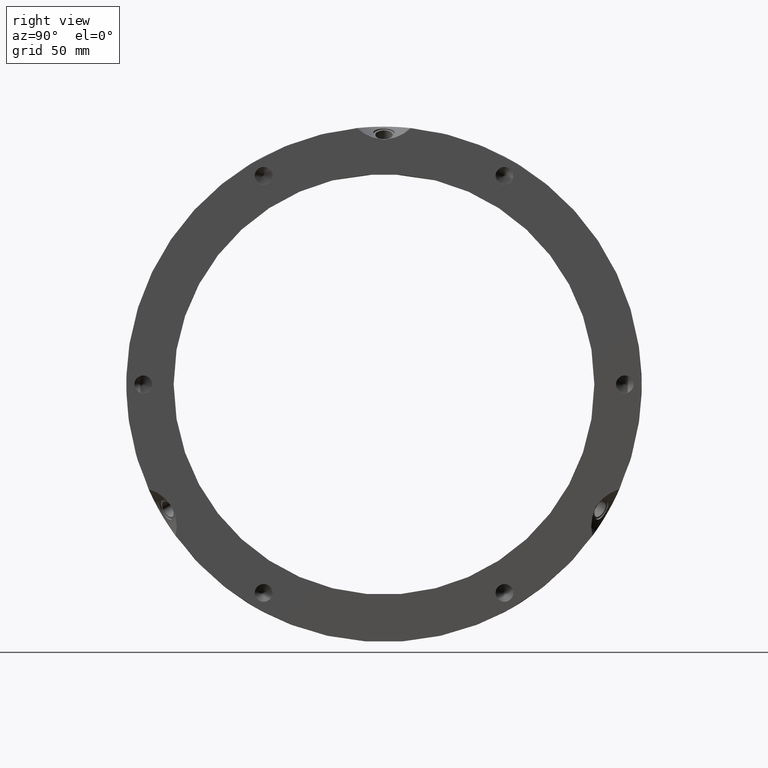
[diagram: clean part render]
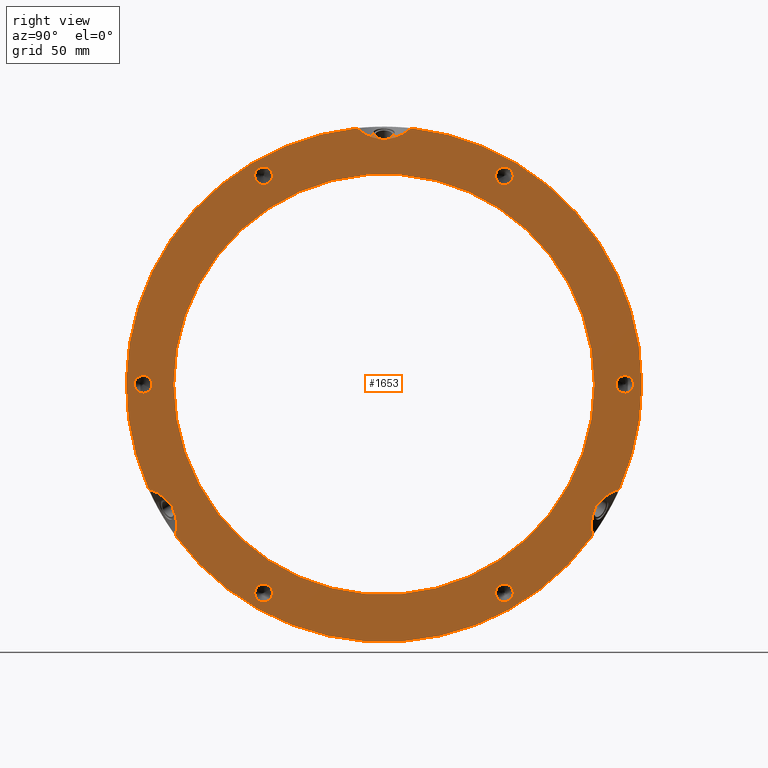
[diagram: same view with one face highlighted and labeled with its STEP entity id]
A machine part, right view. The second image highlights one B-rep face of the part: STEP entity #1653.
In plain terms, the highlighted planar face has unit normal (1, 0, 0).
Its self-contained STEP definition (entity closure, byte-faithful):
#132=CARTESIAN_POINT('',(31.999999999999975,53.61269330410542,97.059908733318252));
#133=VERTEX_POINT('',#132);
#134=CARTESIAN_POINT('',(31.999999999999975,57.25000000000005,99.159908733318218));
#135=DIRECTION('',(-1.0,0.0,0.0));
#136=DIRECTION('',(0.0,-0.866025403784439,-0.499999999999999));
#137=AXIS2_PLACEMENT_3D('',#134,#135,#136);
#138=CIRCLE('',#137,4.2);
#139=EDGE_CURVE('',#133,#133,#138,.T.);
#286=CARTESIAN_POINT('',(31.999999999999975,110.86269330410538,2.1));
#287=VERTEX_POINT('',#286);
#288=CARTESIAN_POINT('',(31.999999999999975,114.50000000000003,0.0));
#289=DIRECTION('',(-1.0,0.0,0.0));
#290=DIRECTION('',(0.0,-0.866025403784438,0.5));
#291=AXIS2_PLACEMENT_3D('',#288,#289,#290);
#292=CIRCLE('',#291,4.200000000000001);
#293=EDGE_CURVE('',#287,#287,#292,.T.);
#440=CARTESIAN_POINT('',(31.999999999999975,57.25000000000005,-94.95990873331823));
#441=VERTEX_POINT('',#440);
#442=CARTESIAN_POINT('',(31.999999999999975,57.25000000000005,-99.159908733318233));
#443=DIRECTION('',(-1.0,0.0,0.0));
#444=DIRECTION('',(0.0,0.0,1.0));
#445=AXIS2_PLACEMENT_3D('',#442,#443,#444);
#446=CIRCLE('',#445,4.200000000000001);
#447=EDGE_CURVE('',#441,#441,#446,.T.);
#594=CARTESIAN_POINT('',(31.999999999999975,-53.612693304105335,-97.059908733318267));
#595=VERTEX_POINT('',#594);
#596=CARTESIAN_POINT('',(31.999999999999975,-57.249999999999986,-99.159908733318247));
#597=DIRECTION('',(-1.0,0.0,0.0));
#598=DIRECTION('',(0.0,0.866025403784439,0.5));
#599=AXIS2_PLACEMENT_3D('',#596,#597,#598);
#600=CIRCLE('',#599,4.199999999999999);
#601=EDGE_CURVE('',#595,#595,#600,.T.);
#748=CARTESIAN_POINT('',(31.999999999999975,-110.86269330410538,-2.100000000000044));
#749=VERTEX_POINT('',#748);
#750=CARTESIAN_POINT('',(31.999999999999975,-114.50000000000003,-4.440892E-014));
#751=DIRECTION('',(-1.0,0.0,0.0));
#752=DIRECTION('',(0.0,0.866025403784439,-0.5));
#753=AXIS2_PLACEMENT_3D('',#750,#751,#752);
#754=CIRCLE('',#753,4.2);
#755=EDGE_CURVE('',#749,#749,#754,.T.);
#902=CARTESIAN_POINT('',(31.999999999999975,-57.250000000000057,94.959908733318215));
#903=VERTEX_POINT('',#902);
#904=CARTESIAN_POINT('',(31.999999999999975,-57.250000000000057,99.159908733318218));
#905=DIRECTION('',(-1.0,0.0,0.0));
#906=DIRECTION('',(0.0,0.0,-1.0));
#907=AXIS2_PLACEMENT_3D('',#904,#905,#906);
#908=CIRCLE('',#907,4.2);
#909=EDGE_CURVE('',#903,#903,#908,.T.);
#997=CARTESIAN_POINT('',(31.999999999980972,101.54865190468115,-57.200979373605492));
#998=VERTEX_POINT('',#997);
#999=CARTESIAN_POINT('',(31.999999999999972,111.89980988498361,-49.846590131166693));
#1000=VERTEX_POINT('',#999);
#1001=CARTESIAN_POINT('',(31.999999999999975,120.8919595408871,-69.797005383792595));
#1002=DIRECTION('',(-1.0,0.0,0.0));
#1003=DIRECTION('',(0.0,-0.866025403784438,0.5));
#1004=AXIS2_PLACEMENT_3D('',#1001,#1002,#1003);
#1005=ELLIPSE('',#1004,23.094010767585029,19.999999999999996);
#1006=EDGE_CURVE('',#998,#1000,#1005,.T.);
#1008=CARTESIAN_POINT('',(31.999999999980972,100.31182721123255,-59.343222582714262));
#1009=VERTEX_POINT('',#1008);
#1048=CARTESIAN_POINT('',(31.999999999999975,99.118318288112803,-71.984782973461577));
#1049=VERTEX_POINT('',#1048);
#1050=CARTESIAN_POINT('',(31.999999999999975,120.8919595408871,-69.797005383792595));
#1051=DIRECTION('',(-1.0,0.0,0.0));
#1052=DIRECTION('',(0.0,-0.866025403784438,0.5));
#1053=AXIS2_PLACEMENT_3D('',#1050,#1051,#1052);
#1054=ELLIPSE('',#1053,23.094010767585029,19.999999999999996);
#1055=EDGE_CURVE('',#1049,#1009,#1054,.T.);
#1144=CARTESIAN_POINT('',(31.999999999999975,109.49999999999987,-63.219854476264018));
#1145=DIRECTION('',(-1.0,0.0,0.0));
#1146=DIRECTION('',(0.0,-0.866025403784438,0.5));
#1147=AXIS2_PLACEMENT_3D('',#1144,#1145,#1146);
#1148=ELLIPSE('',#1147,10.200000000000065,5.10000000000004);
#1149=EDGE_CURVE('',#1009,#998,#1148,.T.);
#1183=CARTESIAN_POINT('',(31.999999999980972,-100.31182721123258,-59.343222582714183));
#1184=VERTEX_POINT('',#1183);
#1185=CARTESIAN_POINT('',(31.999999999999979,-99.11831828811286,-71.98478297346152));
#1186=VERTEX_POINT('',#1185);
#1187=CARTESIAN_POINT('',(31.999999999999975,-120.89195954088714,-69.797005383792495));
#1188=DIRECTION('',(-1.0,0.0,0.0));
#1189=DIRECTION('',(0.0,0.866025403784439,0.5));
#1190=AXIS2_PLACEMENT_3D('',#1187,#1188,#1189);
#1191=ELLIPSE('',#1190,23.094010767585026,19.999999999999996);
#1192=EDGE_CURVE('',#1184,#1186,#1191,.T.);
#1194=CARTESIAN_POINT('',(31.999999999980972,-101.54865190468118,-57.200979373605392));
#1195=VERTEX_POINT('',#1194);
#1234=CARTESIAN_POINT('',(31.999999999999972,-111.89980988498364,-49.846590131166622));
#1235=VERTEX_POINT('',#1234);
#1236=CARTESIAN_POINT('',(31.999999999999975,-120.89195954088714,-69.797005383792495));
#1237=DIRECTION('',(-1.0,0.0,0.0));
#1238=DIRECTION('',(0.0,0.866025403784439,0.5));
#1239=AXIS2_PLACEMENT_3D('',#1236,#1237,#1238);
#1240=ELLIPSE('',#1239,23.094010767585026,19.999999999999996);
#1241=EDGE_CURVE('',#1235,#1195,#1240,.T.);
#1330=CARTESIAN_POINT('',(31.999999999999975,-109.4999999999999,-63.219854476263926));
#1331=DIRECTION('',(-1.0,0.0,0.0));
#1332=DIRECTION('',(0.0,0.866025403784439,0.5));
#1333=AXIS2_PLACEMENT_3D('',#1330,#1331,#1332);
#1334=ELLIPSE('',#1333,10.200000000000063,5.100000000000039);
#1335=EDGE_CURVE('',#1195,#1184,#1334,.T.);
#1405=CARTESIAN_POINT('',(31.999999999999975,0.0,0.0));
#1406=DIRECTION('',(1.0,0.0,0.0));
#1407=DIRECTION('',(0.0,1.0,0.0));
#1408=AXIS2_PLACEMENT_3D('',#1405,#1406,#1407);
#1409=CIRCLE('',#1408,122.5);
#1410=EDGE_CURVE('',#1186,#1049,#1409,.T.);
#1413=CARTESIAN_POINT('',(31.999999999999975,-12.781491596870836,121.83137310462818));
#1414=VERTEX_POINT('',#1413);
#1415=CARTESIAN_POINT('',(31.999999999999975,0.0,0.0));
#1416=DIRECTION('',(1.0,0.0,0.0));
#1417=DIRECTION('',(0.0,1.0,0.0));
#1418=AXIS2_PLACEMENT_3D('',#1415,#1416,#1417);
#1419=CIRCLE('',#1418,122.5);
#1420=EDGE_CURVE('',#1414,#1235,#1419,.T.);
#1422=CARTESIAN_POINT('',(31.999999999999975,12.781491596870836,121.83137310462818));
#1423=VERTEX_POINT('',#1422);
#1445=CARTESIAN_POINT('',(31.999999999999975,0.0,0.0));
#1446=DIRECTION('',(1.0,0.0,0.0));
#1447=DIRECTION('',(0.0,1.0,0.0));
#1448=AXIS2_PLACEMENT_3D('',#1445,#1446,#1447);
#1449=CIRCLE('',#1448,122.5);
#1450=EDGE_CURVE('',#1000,#1423,#1449,.T.);
#1518=CARTESIAN_POINT('',(31.999999999999979,-1.236824693243798,116.54420195628303));
#1519=VERTEX_POINT('',#1518);
#1520=CARTESIAN_POINT('',(31.999999999999979,1.236824693243798,116.54420195628303));
#1521=VERTEX_POINT('',#1520);
#1560=CARTESIAN_POINT('',(31.999999999999975,0.0,126.43970895252789));
#1561=DIRECTION('',(-1.0,0.0,0.0));
#1562=DIRECTION('',(0.0,0.0,-1.0));
#1563=AXIS2_PLACEMENT_3D('',#1560,#1561,#1562);
#1564=ELLIPSE('',#1563,10.200000000000065,5.10000000000004);
#1565=EDGE_CURVE('',#1521,#1519,#1564,.T.);
#1593=CARTESIAN_POINT('',(31.999999999999975,111.25,0.0));
#1594=DIRECTION('',(1.0,0.0,0.0));
#1595=DIRECTION('',(0.0,0.0,-1.0));
#1596=AXIS2_PLACEMENT_3D('',#1593,#1594,#1595);
#1597=PLANE('',#1596);
#1598=ORIENTED_EDGE('',*,*,#1006,.T.);
#1599=ORIENTED_EDGE('',*,*,#1450,.T.);
#1600=CARTESIAN_POINT('',(31.999999999999975,0.0,139.59401076758505));
#1601=DIRECTION('',(-1.0,0.0,0.0));
#1602=DIRECTION('',(0.0,0.0,-1.0));
#1603=AXIS2_PLACEMENT_3D('',#1600,#1601,#1602);
#1604=ELLIPSE('',#1603,23.094010767585029,19.999999999999996);
#1605=EDGE_CURVE('',#1423,#1521,#1604,.T.);
#1606=ORIENTED_EDGE('',*,*,#1605,.T.);
#1607=ORIENTED_EDGE('',*,*,#1565,.T.);
#1608=CARTESIAN_POINT('',(31.999999999999975,0.0,139.59401076758505));
#1609=DIRECTION('',(-1.0,0.0,0.0));
#1610=DIRECTION('',(0.0,0.0,-1.0));
#1611=AXIS2_PLACEMENT_3D('',#1608,#1609,#1610);
#1612=ELLIPSE('',#1611,23.094010767585029,19.999999999999996);
#1613=EDGE_CURVE('',#1519,#1414,#1612,.T.);
#1614=ORIENTED_EDGE('',*,*,#1613,.T.);
#1615=ORIENTED_EDGE('',*,*,#1420,.T.);
#1616=ORIENTED_EDGE('',*,*,#1241,.T.);
#1617=ORIENTED_EDGE('',*,*,#1335,.T.);
#1618=ORIENTED_EDGE('',*,*,#1192,.T.);
#1619=ORIENTED_EDGE('',*,*,#1410,.T.);
#1620=ORIENTED_EDGE('',*,*,#1055,.T.);
#1621=ORIENTED_EDGE('',*,*,#1149,.T.);
#1622=EDGE_LOOP('',(#1598,#1599,#1606,#1607,#1614,#1615,#1616,#1617,#1618,#1619,#1620,#1621));
#1623=FACE_OUTER_BOUND('',#1622,.T.);
#1624=ORIENTED_EDGE('',*,*,#139,.T.);
#1625=EDGE_LOOP('',(#1624));
#1626=FACE_BOUND('',#1625,.T.);
#1627=ORIENTED_EDGE('',*,*,#293,.T.);
#1628=EDGE_LOOP('',(#1627));
#1629=FACE_BOUND('',#1628,.T.);
#1630=ORIENTED_EDGE('',*,*,#447,.T.);
#1631=EDGE_LOOP('',(#1630));
#1632=FACE_BOUND('',#1631,.T.);
#1633=ORIENTED_EDGE('',*,*,#601,.T.);
#1634=EDGE_LOOP('',(#1633));
#1635=FACE_BOUND('',#1634,.T.);
#1636=ORIENTED_EDGE('',*,*,#755,.T.);
#1637=EDGE_LOOP('',(#1636));
#1638=FACE_BOUND('',#1637,.T.);
#1639=ORIENTED_EDGE('',*,*,#909,.T.);
#1640=EDGE_LOOP('',(#1639));
#1641=FACE_BOUND('',#1640,.T.);
#1642=CARTESIAN_POINT('',(31.999999999999979,100.0,0.0));
#1643=VERTEX_POINT('',#1642);
#1644=CARTESIAN_POINT('',(31.999999999999979,0.0,0.0));
#1645=DIRECTION('',(1.0,0.0,0.0));
#1646=DIRECTION('',(0.0,1.0,0.0));
#1647=AXIS2_PLACEMENT_3D('',#1644,#1645,#1646);
#1648=CIRCLE('',#1647,100.0);
#1649=EDGE_CURVE('',#1643,#1643,#1648,.T.);
#1650=ORIENTED_EDGE('',*,*,#1649,.F.);
#1651=EDGE_LOOP('',(#1650));
#1652=FACE_BOUND('',#1651,.T.);
#1653=ADVANCED_FACE('',(#1623,#1626,#1629,#1632,#1635,#1638,#1641,#1652),#1597,.T.);